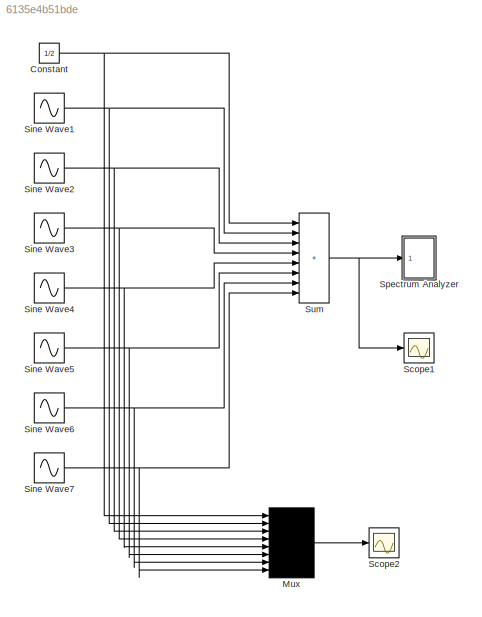
MODEL slx_6135e4b51bde
KIND model
CONFIG AbsTol = 1e-6
CONFIG EnableMultiTasking = off
CONFIG FixedStep = auto
CONFIG MaxStep = 0.005
CONFIG MinStep = auto
CONFIG RelTol = 1e-3
CONFIG SampleTimeConstraint = Unconstrained
CONFIG SolverName = ode45
CONFIG StartTime = 0.0
CONFIG StopTime = 20
BLOCK [Constant] Constant
  Value = 1/2
BLOCK [Mux] Mux
  Inputs = 8
  Ports = [8, 1]
BLOCK [Scope] Scope1
  Floating = off
  NumInputPorts = 1
  Ports = [1]
  ScopeSpecificationString = Simulink.scopes.TimeScopeBlockCfg('CurrentConfiguration', extmgr.ConfigurationSet(extmgr.Configuration('Core','General UI',true),extmgr.Configuration('Core','Source UI',true),extmgr.Configuration('Sources','WiredSimulink',true,'DataLoggingLimitDataPoints',true,'DataLoggingDecimation','1','DataLoggingDecimateData',true,'DataLoggingSaveFormat','Array'),extmgr.Configuration('Visuals','Time Domain',tr...<+1681ch>
BLOCK [Scope] Scope2
  Floating = off
  NumInputPorts = 1
  Ports = [1]
  ScopeSpecificationString = Simulink.scopes.TimeScopeBlockCfg('CurrentConfiguration', extmgr.ConfigurationSet(extmgr.Configuration('Core','General UI',true),extmgr.Configuration('Core','Source UI',true),extmgr.Configuration('Sources','WiredSimulink',true,'DataLoggingLimitDataPoints',true,'DataLoggingDecimation','1','DataLoggingDecimateData',true,'DataLoggingSaveFormat','Array'),extmgr.Configuration('Visuals','Time Domain',tr...<+1777ch>
BLOCK [Sin] Sine Wave1
  Amplitude = 2/pi
  Frequency = 1*pi
  Ports = [0, 1]
  SampleTime = 0
BLOCK [Sin] Sine Wave2
  Amplitude = -2/(3*pi)
  Frequency = 3*pi
  Phase = -pi
  Ports = [0, 1]
  SampleTime = 0
BLOCK [Sin] Sine Wave3
  Amplitude = 2/(5*pi)
  Frequency = 5*pi
  Phase = -2*pi
  Ports = [0, 1]
  SampleTime = 0
BLOCK [Sin] Sine Wave4
  Amplitude = -2/(7*pi)
  Frequency = 7*pi
  Phase = -3*pi
  Ports = [0, 1]
  SampleTime = 0
BLOCK [Sin] Sine Wave5
  Amplitude = 2/(9*pi)
  Frequency = 9*pi
  Phase = -4*pi
  Ports = [0, 1]
  SampleTime = 0
BLOCK [Sin] Sine Wave6
  Amplitude = -2/(11*pi)
  Frequency = 11*pi
  Phase = -5*pi
  Ports = [0, 1]
  SampleTime = 0
BLOCK [Sin] Sine Wave7
  Amplitude = 2/(13*pi)
  Frequency = 13*pi
  Phase = -6*pi
  Ports = [0, 1]
  SampleTime = 0
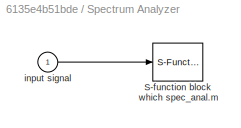
BLOCK [SubSystem] Spectrum Analyzer
  Ports = [1]
  RequestExecContextInheritance = off
  ShowPortLabels = none
BLOCK [S-Function] Spectrum Analyzer/S-function block which spec_anal.m
  EnableBusSupport = off
  FunctionName = SpecAnal
  Parameters = N,T_s,plot_period
  Ports = [1]
  SFcnIsStateOwnerBlock = off
  SFunctionDeploymentMode = off
BLOCK [Inport] Spectrum Analyzer/input signal
BLOCK [Sum] Sum
  IconShape = rectangular
  InputSameDT = on
  Inputs = ++++++++
  OutDataTypeStr = Inherit: Same as first input
  Ports = [8, 1]
  SaturateOnIntegerOverflow = on
NET Constant:1 -> Mux:1, Sum:1
LINE Mux:1 -> Scope2:1
NET Sine Wave1:1 -> Mux:2, Sum:2
NET Sine Wave2:1 -> Mux:3, Sum:3
NET Sine Wave3:1 -> Mux:4, Sum:4
NET Sine Wave4:1 -> Mux:5, Sum:5
NET Sine Wave5:1 -> Mux:6, Sum:6
NET Sine Wave6:1 -> Mux:7, Sum:7
NET Sine Wave7:1 -> Mux:8, Sum:8
LINE Spectrum Analyzer/input signal:1 -> Spectrum Analyzer/S-function block which spec_anal.m:1
NET Sum:1 -> Scope1:1, Spectrum Analyzer:1
note: NET lines group one-source signal fan-out (src -> all destinations, sorted); 1:1 wires keep LINE
